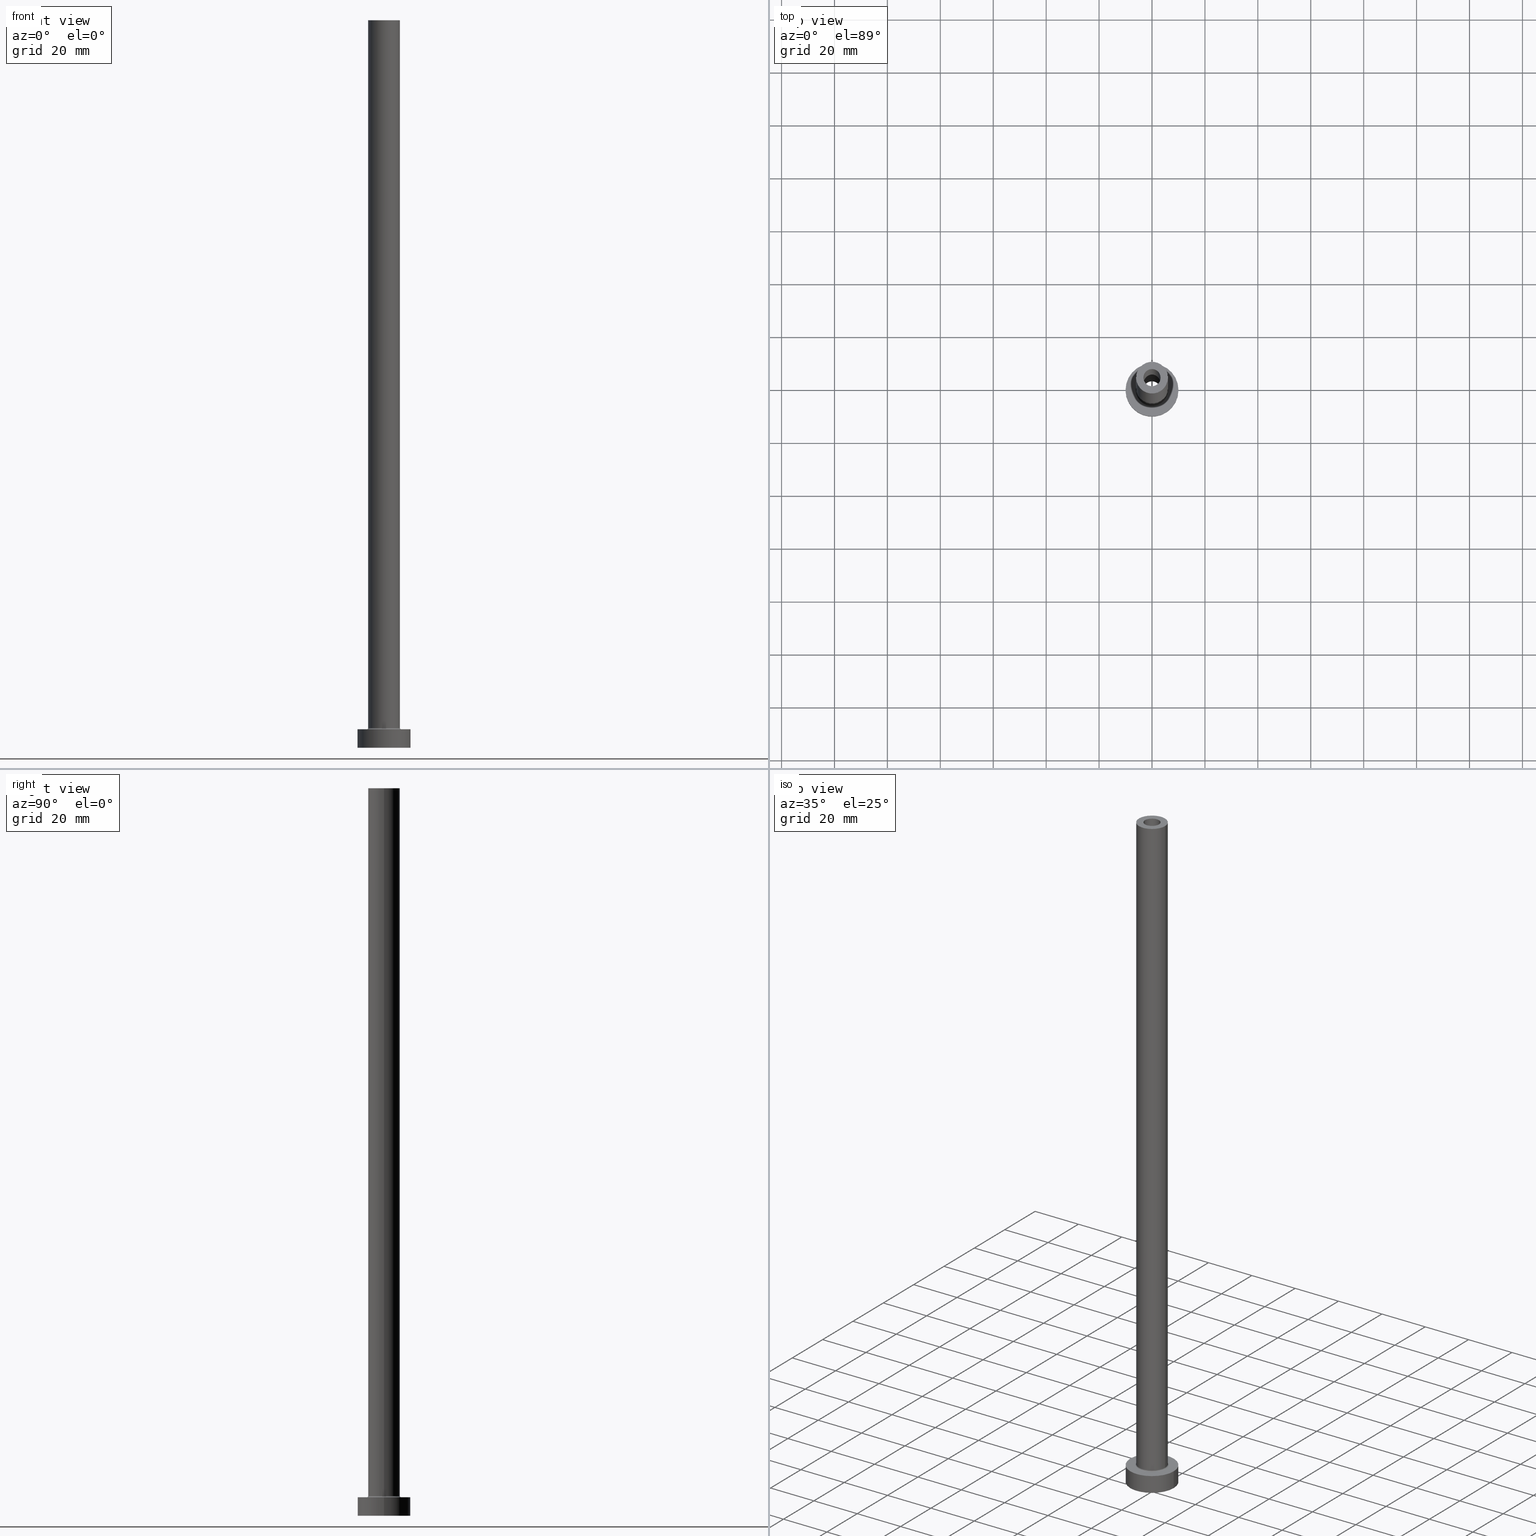
[diagram: canonical four-view strip — front | top / right | iso, engineering-drawing reading convention]
A machine part, canonical four-view strip (front | top / right | iso — engineering-drawing reading convention). The complete STEP part file that produces these views, byte-faithful:
ISO-10303-21;
HEADER;
FILE_DESCRIPTION (( 'STEP AP203' ),
    '1' );
FILE_NAME ('68f6.STEP',
    '2023-02-13T13:31:06',
    ( '' ),
    ( '' ),
    'SwSTEP 2.0',
    'SolidWorks 2019',
    '' );
FILE_SCHEMA (( 'CONFIG_CONTROL_DESIGN' ));
ENDSEC;

DATA;
#1 = CARTESIAN_POINT ( 'NONE',  ( 3.250000000000000444, 3.980102097228897245E-16, 275.0000000000000000 ) ) ;
#2 = CIRCLE ( 'NONE', #248, 6.000000000000000888 ) ;
#3 = SECURITY_CLASSIFICATION ( '', '', #225 ) ;
#4 = EDGE_LOOP ( 'NONE', ( #143, #25, #193, #302 ) ) ;
#5 = DIRECTION ( 'NONE',  ( 0.000000000000000000, 0.000000000000000000, 1.000000000000000000 ) ) ;
#6 = DATE_AND_TIME ( #16, #356 ) ;
#7 = ORIENTED_EDGE ( 'NONE', *, *, #192, .F. ) ;
#8 = FACE_OUTER_BOUND ( 'NONE', #10, .T. ) ;
#9 = AXIS2_PLACEMENT_3D ( 'NONE', #182, #425, #158 ) ;
#10 = EDGE_LOOP ( 'NONE', ( #113, #443, #221, #288 ) ) ;
#11 = DIRECTION ( 'NONE',  ( 1.000000000000000000, 0.000000000000000000, 0.000000000000000000 ) ) ;
#12 = APPROVAL_ROLE ( '' ) ;
#13 = VERTEX_POINT ( 'NONE', #420 ) ;
#14 = FACE_OUTER_BOUND ( 'NONE', #233, .T. ) ;
#15 = EDGE_CURVE ( 'NONE', #336, #272, #213, .T. ) ;
#16 = CALENDAR_DATE ( 2023, 13, 2 ) ;
#17 = ORIENTED_EDGE ( 'NONE', *, *, #31, .T. ) ;
#18 = AXIS2_PLACEMENT_3D ( 'NONE', #52, #208, #346 ) ;
#19 = DIRECTION ( 'NONE',  ( -0.000000000000000000, -0.000000000000000000, -1.000000000000000000 ) ) ;
#20 = DIRECTION ( 'NONE',  ( 0.000000000000000000, 0.000000000000000000, 1.000000000000000000 ) ) ;
#21 = CARTESIAN_POINT ( 'NONE',  ( 0.000000000000000000, 0.000000000000000000, 275.0000000000000000 ) ) ;
#22 = CARTESIAN_POINT ( 'NONE',  ( 0.000000000000000000, 0.000000000000000000, 275.0000000000000000 ) ) ;
#23 = CARTESIAN_POINT ( 'NONE',  ( -10.00000000000000000, 0.000000000000000000, 0.000000000000000000 ) ) ;
#24 = CARTESIAN_POINT ( 'NONE',  ( -3.250000000000000444, 0.000000000000000000, 275.0000000000000000 ) ) ;
#25 = ORIENTED_EDGE ( 'NONE', *, *, #43, .T. ) ;
#26 = EDGE_CURVE ( 'NONE', #77, #336, #103, .T. ) ;
#27 = DIRECTION ( 'NONE',  ( -1.000000000000000000, 0.000000000000000000, 0.000000000000000000 ) ) ;
#28 = CARTESIAN_POINT ( 'NONE',  ( 0.000000000000000000, 0.000000000000000000, 7.500000000000007105 ) ) ;
#29 = CIRCLE ( 'NONE', #284, 3.250000000000000444 ) ;
#30 = MANIFOLD_SOLID_BREP ( 'Odebrat vysunut�m4', #377 ) ;
#31 = EDGE_CURVE ( 'NONE', #96, #13, #455, .T. ) ;
#32 = CC_DESIGN_PERSON_AND_ORGANIZATION_ASSIGNMENT ( #76, #218, ( #3 ) ) ;
#33 = CIRCLE ( 'NONE', #292, 10.00000000000000000 ) ;
#34 = APPLICATION_CONTEXT ( 'configuration controlled 3d designs of mechanical parts and assemblies' ) ;
#35 = DIRECTION ( 'NONE',  ( 1.000000000000000000, 0.000000000000000000, 0.000000000000000000 ) ) ;
#36 = CARTESIAN_POINT ( 'NONE',  ( 0.000000000000000000, 0.000000000000000000, 230.0000000000000284 ) ) ;
#37 = CIRCLE ( 'NONE', #146, 10.00000000000000000 ) ;
#38 = EDGE_LOOP ( 'NONE', ( #432, #223, #344, #254 ) ) ;
#39 = DIRECTION ( 'NONE',  ( 1.000000000000000000, 0.000000000000000000, 0.000000000000000000 ) ) ;
#40 = COORDINATED_UNIVERSAL_TIME_OFFSET ( 1, 0, .AHEAD. ) ;
#41 = ORIENTED_EDGE ( 'NONE', *, *, #104, .T. ) ;
#42 = DIRECTION ( 'NONE',  ( 1.000000000000000000, 0.000000000000000000, 0.000000000000000000 ) ) ;
#43 = EDGE_CURVE ( 'NONE', #169, #398, #270, .T. ) ;
#44 = SHAPE_DEFINITION_REPRESENTATION ( #214, #195 ) ;
#45 = ORIENTED_EDGE ( 'NONE', *, *, #215, .T. ) ;
#46 = CARTESIAN_POINT ( 'NONE',  ( 10.00000000000000000, 1.224646799147353256E-15, 7.000000000000000000 ) ) ;
#47 = CIRCLE ( 'NONE', #129, 3.250000000000000444 ) ;
#48 = CC_DESIGN_APPROVAL ( #359, ( #449 ) ) ;
#49 = PERSON_AND_ORGANIZATION ( #422, #275 ) ;
#50 = EDGE_CURVE ( 'NONE', #160, #264, #47, .T. ) ;
#51 = ORIENTED_EDGE ( 'NONE', *, *, #151, .F. ) ;
#52 = CARTESIAN_POINT ( 'NONE',  ( 0.000000000000000000, 0.000000000000000000, 275.0000000000000000 ) ) ;
#53 = PERSON_AND_ORGANIZATION_ROLE ( 'creator' ) ;
#54 = ORIENTED_EDGE ( 'NONE', *, *, #15, .T. ) ;
#55 = FACE_OUTER_BOUND ( 'NONE', #206, .T. ) ;
#56 = DIRECTION ( 'NONE',  ( 0.000000000000000000, 0.000000000000000000, 1.000000000000000000 ) ) ;
#57 = ORIENTED_EDGE ( 'NONE', *, *, #132, .T. ) ;
#58 = CIRCLE ( 'NONE', #349, 3.399999999999999911 ) ;
#59 = CYLINDRICAL_SURFACE ( 'NONE', #120, 6.000000000000000888 ) ;
#60 = CIRCLE ( 'NONE', #107, 0.5000000000000004441 ) ;
#61 = CARTESIAN_POINT ( 'NONE',  ( 0.000000000000000000, 0.000000000000000000, 275.0000000000000000 ) ) ;
#62 = DIRECTION ( 'NONE',  ( 1.000000000000000000, 0.000000000000000000, -0.000000000000000000 ) ) ;
#63 = ORIENTED_EDGE ( 'NONE', *, *, #116, .T. ) ;
#64 = EDGE_CURVE ( 'NONE', #264, #160, #267, .T. ) ;
#65 = DIRECTION ( 'NONE',  ( 0.000000000000000000, -1.000000000000000000, 0.000000000000000000 ) ) ;
#66 = DIRECTION ( 'NONE',  ( 1.000000000000000000, 0.000000000000000000, -0.000000000000000000 ) ) ;
#67 = ORIENTED_EDGE ( 'NONE', *, *, #64, .F. ) ;
#68 = DIRECTION ( 'NONE',  ( 1.000000000000000000, 0.000000000000000000, 0.000000000000000000 ) ) ;
#69 = TOROIDAL_SURFACE ( 'NONE', #73, 6.500000000000000888, 0.5000000000000000000 ) ;
#70 = ADVANCED_FACE ( 'NONE', ( #139 ), #311, .F. ) ;
#71 = ADVANCED_FACE ( 'NONE', ( #360 ), #255, .T. ) ;
#72 = UNCERTAINTY_MEASURE_WITH_UNIT (LENGTH_MEASURE( 1.000000000000000082E-05 ), #97, 'distance_accuracy_value', 'NONE');
#73 = AXIS2_PLACEMENT_3D ( 'NONE', #190, #5, #352 ) ;
#74 = LINE ( 'NONE', #227, #434 ) ;
#75 = CARTESIAN_POINT ( 'NONE',  ( 0.000000000000000000, 0.000000000000000000, 7.000000000000000000 ) ) ;
#76 = PERSON_AND_ORGANIZATION ( #422, #275 ) ;
#77 = VERTEX_POINT ( 'NONE', #78 ) ;
#78 = CARTESIAN_POINT ( 'NONE',  ( -3.399999999999999911, 0.000000000000000000, 230.0000000000000284 ) ) ;
#79 = CIRCLE ( 'NONE', #386, 10.00000000000000000 ) ;
#80 = APPROVAL_STATUS ( 'not_yet_approved' ) ;
#81 = EDGE_LOOP ( 'NONE', ( #321, #436 ) ) ;
#82 = CC_DESIGN_PERSON_AND_ORGANIZATION_ASSIGNMENT ( #298, #126, ( #449 ) ) ;
#83 = DIRECTION ( 'NONE',  ( 0.000000000000000000, 0.000000000000000000, 1.000000000000000000 ) ) ;
#84 = APPROVAL_DATE_TIME ( #431, #283 ) ;
#85 = ORIENTED_EDGE ( 'NONE', *, *, #236, .T. ) ;
#86 = CYLINDRICAL_SURFACE ( 'NONE', #9, 10.00000000000000000 ) ;
#87 = MECHANICAL_CONTEXT ( 'NONE', #341, 'mechanical' ) ;
#88 = ORIENTED_EDGE ( 'NONE', *, *, #236, .F. ) ;
#89 = DIRECTION ( 'NONE',  ( -1.000000000000000000, 0.000000000000000000, 0.000000000000000000 ) ) ;
#90 = CIRCLE ( 'NONE', #274, 6.000000000000000888 ) ;
#91 = CIRCLE ( 'NONE', #396, 10.00000000000000000 ) ;
#92 = PERSON_AND_ORGANIZATION ( #422, #275 ) ;
#93 = ORIENTED_EDGE ( 'NONE', *, *, #445, .F. ) ;
#94 = CARTESIAN_POINT ( 'NONE',  ( -6.000000000000000888, 0.000000000000000000, 7.500000000000007105 ) ) ;
#95 = DIRECTION ( 'NONE',  ( 1.000000000000000000, 0.000000000000000000, 0.000000000000000000 ) ) ;
#96 = VERTEX_POINT ( 'NONE', #399 ) ;
#97 =( LENGTH_UNIT ( ) NAMED_UNIT ( * ) SI_UNIT ( .MILLI., .METRE. ) );
#98 = CARTESIAN_POINT ( 'NONE',  ( -3.399999999999999911, 0.000000000000000000, 239.6166522241370842 ) ) ;
#99 = DIRECTION ( 'NONE',  ( -1.000000000000000000, 0.000000000000000000, 0.000000000000000000 ) ) ;
#100 = EDGE_LOOP ( 'NONE', ( #163, #154, #347, #368 ) ) ;
#101 = DIRECTION ( 'NONE',  ( 0.000000000000000000, 0.000000000000000000, 1.000000000000000000 ) ) ;
#102 = CARTESIAN_POINT ( 'NONE',  ( 6.000000000000000888, 7.347880794884120722E-16, 275.0000000000000000 ) ) ;
#103 = LINE ( 'NONE', #98, #240 ) ;
#104 = EDGE_CURVE ( 'NONE', #169, #340, #79, .T. ) ;
#105 = CYLINDRICAL_SURFACE ( 'NONE', #229, 3.399999999999999911 ) ;
#106 = AXIS2_PLACEMENT_3D ( 'NONE', #444, #312, #142 ) ;
#107 = AXIS2_PLACEMENT_3D ( 'NONE', #381, #65, #335 ) ;
#108 = AXIS2_PLACEMENT_3D ( 'NONE', #437, #316, #429 ) ;
#109 = AXIS2_PLACEMENT_3D ( 'NONE', #373, #168, #238 ) ;
#110 = DIRECTION ( 'NONE',  ( 0.000000000000000000, 0.000000000000000000, -1.000000000000000000 ) ) ;
#111 = FACE_BOUND ( 'NONE', #411, .T. ) ;
#112 = EDGE_CURVE ( 'NONE', #400, #398, #33, .T. ) ;
#113 = ORIENTED_EDGE ( 'NONE', *, *, #43, .F. ) ;
#114 = CARTESIAN_POINT ( 'NONE',  ( 0.000000000000000000, 0.000000000000000000, 275.0000000000000000 ) ) ;
#115 = DATE_TIME_ROLE ( 'classification_date' ) ;
#116 = EDGE_CURVE ( 'NONE', #77, #374, #58, .T. ) ;
#117 = ORIENTED_EDGE ( 'NONE', *, *, #151, .T. ) ;
#118 = DIRECTION ( 'NONE',  ( -1.000000000000000000, 0.000000000000000000, 0.000000000000000000 ) ) ;
#119 = VECTOR ( 'NONE', #123, 1000.000000000000000 ) ;
#120 = AXIS2_PLACEMENT_3D ( 'NONE', #21, #19, #99 ) ;
#121 = DATE_AND_TIME ( #435, #191 ) ;
#122 = ORIENTED_EDGE ( 'NONE', *, *, #26, .T. ) ;
#123 = DIRECTION ( 'NONE',  ( -0.000000000000000000, -0.000000000000000000, -1.000000000000000000 ) ) ;
#124 = ORIENTED_EDGE ( 'NONE', *, *, #192, .T. ) ;
#125 = CYLINDRICAL_SURFACE ( 'NONE', #459, 10.00000000000000000 ) ;
#126 = PERSON_AND_ORGANIZATION_ROLE ( 'creator' ) ;
#127 = VERTEX_POINT ( 'NONE', #179 ) ;
#128 = DIRECTION ( 'NONE',  ( -0.000000000000000000, -0.000000000000000000, -1.000000000000000000 ) ) ;
#129 = AXIS2_PLACEMENT_3D ( 'NONE', #22, #448, #239 ) ;
#130 = APPROVAL_PERSON_ORGANIZATION ( #260, #283, #183 ) ;
#131 =( NAMED_UNIT ( * ) SI_UNIT ( $, .STERADIAN. ) SOLID_ANGLE_UNIT ( ) );
#132 = EDGE_CURVE ( 'NONE', #340, #169, #37, .T. ) ;
#133 = ORIENTED_EDGE ( 'NONE', *, *, #354, .T. ) ;
#134 = PLANE ( 'NONE',  #147 ) ;
#135 = CARTESIAN_POINT ( 'NONE',  ( 0.000000000000000000, 0.000000000000000000, 0.000000000000000000 ) ) ;
#136 = EDGE_CURVE ( 'NONE', #160, #96, #433, .T. ) ;
#137 = FACE_OUTER_BOUND ( 'NONE', #81, .T. ) ;
#138 = CC_DESIGN_DATE_AND_TIME_ASSIGNMENT ( #295, #115, ( #3 ) ) ;
#139 = FACE_OUTER_BOUND ( 'NONE', #324, .T. ) ;
#140 = AXIS2_PLACEMENT_3D ( 'NONE', #319, #83, #286 ) ;
#141 = FACE_OUTER_BOUND ( 'NONE', #331, .T. ) ;
#142 = DIRECTION ( 'NONE',  ( -1.000000000000000000, 0.000000000000000000, 0.000000000000000000 ) ) ;
#143 = ORIENTED_EDGE ( 'NONE', *, *, #104, .F. ) ;
#144 = EDGE_CURVE ( 'NONE', #393, #333, #2, .T. ) ;
#145 = CARTESIAN_POINT ( 'NONE',  ( -3.250000000000000444, 0.000000000000000000, 275.0000000000000000 ) ) ;
#146 = AXIS2_PLACEMENT_3D ( 'NONE', #75, #389, #11 ) ;
#147 = AXIS2_PLACEMENT_3D ( 'NONE', #412, #56, #451 ) ;
#148 = EDGE_CURVE ( 'NONE', #266, #333, #262, .T. ) ;
#149 = VECTOR ( 'NONE', #164, 1000.000000000000000 ) ;
#150 = DIRECTION ( 'NONE',  ( 0.000000000000000000, 0.000000000000000000, 1.000000000000000000 ) ) ;
#151 = EDGE_CURVE ( 'NONE', #127, #408, #159, .T. ) ;
#152 = FACE_OUTER_BOUND ( 'NONE', #189, .T. ) ;
#153 = EDGE_CURVE ( 'NONE', #374, #77, #387, .T. ) ;
#154 = ORIENTED_EDGE ( 'NONE', *, *, #50, .T. ) ;
#155 = CARTESIAN_POINT ( 'NONE',  ( 0.000000000000000000, 0.000000000000000000, 7.000000000000000000 ) ) ;
#156 = PERSON_AND_ORGANIZATION_ROLE ( 'design_supplier' ) ;
#157 = ORIENTED_EDGE ( 'NONE', *, *, #116, .F. ) ;
#158 = DIRECTION ( 'NONE',  ( -1.000000000000000000, 0.000000000000000000, 0.000000000000000000 ) ) ;
#159 = CIRCLE ( 'NONE', #219, 6.500000000000000888 ) ;
#160 = VERTEX_POINT ( 'NONE', #251 ) ;
#161 = DIRECTION ( 'NONE',  ( 1.000000000000000000, 0.000000000000000000, 0.000000000000000000 ) ) ;
#162 = DIRECTION ( 'NONE',  ( 1.000000000000000000, 0.000000000000000000, 0.000000000000000000 ) ) ;
#163 = ORIENTED_EDGE ( 'NONE', *, *, #136, .F. ) ;
#164 = DIRECTION ( 'NONE',  ( 0.000000000000000000, 0.000000000000000000, -1.000000000000000000 ) ) ;
#165 = EDGE_LOOP ( 'NONE', ( #67, #209 ) ) ;
#166 = AXIS2_PLACEMENT_3D ( 'NONE', #155, #334, #66 ) ;
#167 = CC_DESIGN_APPROVAL ( #378, ( #3 ) ) ;
#168 = DIRECTION ( 'NONE',  ( 1.224646799147353207E-16, 1.000000000000000000, -0.000000000000000000 ) ) ;
#169 = VERTEX_POINT ( 'NONE', #46 ) ;
#170 = ADVANCED_FACE ( 'NONE', ( #8 ), #86, .T. ) ;
#171 = DIRECTION ( 'NONE',  ( 0.000000000000000000, 0.000000000000000000, 1.000000000000000000 ) ) ;
#172 = ORIENTED_EDGE ( 'NONE', *, *, #438, .F. ) ;
#173 = CARTESIAN_POINT ( 'NONE',  ( 0.000000000000000000, 0.000000000000000000, 0.000000000000000000 ) ) ;
#174 = CARTESIAN_POINT ( 'NONE',  ( 3.399999999999999911, 4.163799117101000559E-16, 0.000000000000000000 ) ) ;
#175 = EDGE_LOOP ( 'NONE', ( #380, #88 ) ) ;
#176 = FACE_BOUND ( 'NONE', #175, .T. ) ;
#177 = FACE_OUTER_BOUND ( 'NONE', #200, .T. ) ;
#178 = AXIS2_PLACEMENT_3D ( 'NONE', #36, #185, #161 ) ;
#179 = CARTESIAN_POINT ( 'NONE',  ( 6.500000000000000888, 0.000000000000000000, 7.000000000000002665 ) ) ;
#180 = EDGE_CURVE ( 'NONE', #374, #272, #74, .T. ) ;
#181 = CIRCLE ( 'NONE', #326, 3.399999999999999911 ) ;
#182 = CARTESIAN_POINT ( 'NONE',  ( 0.000000000000000000, 0.000000000000000000, 7.000000000000000000 ) ) ;
#183 = APPROVAL_ROLE ( '' ) ;
#184 = ORIENTED_EDGE ( 'NONE', *, *, #64, .T. ) ;
#185 = DIRECTION ( 'NONE',  ( 0.000000000000000000, 0.000000000000000000, 1.000000000000000000 ) ) ;
#186 = DIRECTION ( 'NONE',  ( 0.000000000000000000, 0.000000000000000000, 1.000000000000000000 ) ) ;
#187 = CARTESIAN_POINT ( 'NONE',  ( 0.000000000000000000, 0.000000000000000000, 275.0000000000000000 ) ) ;
#188 = COORDINATED_UNIVERSAL_TIME_OFFSET ( 1, 0, .AHEAD. ) ;
#189 = EDGE_LOOP ( 'NONE', ( #57, #41 ) ) ;
#190 = CARTESIAN_POINT ( 'NONE',  ( 0.000000000000000000, 0.000000000000000000, 7.500000000000007105 ) ) ;
#191 = LOCAL_TIME ( 14, 31, 6.000000000000000000, #40 ) ;
#192 = EDGE_CURVE ( 'NONE', #266, #278, #90, .T. ) ;
#193 = ORIENTED_EDGE ( 'NONE', *, *, #428, .T. ) ;
#194 = CARTESIAN_POINT ( 'NONE',  ( 0.000000000000000000, 0.000000000000000000, 7.000000000000000000 ) ) ;
#195 = ADVANCED_BREP_SHAPE_REPRESENTATION ( '68f6', ( #30, #318 ), #460 ) ;
#196 = ORIENTED_EDGE ( 'NONE', *, *, #26, .F. ) ;
#197 = FACE_BOUND ( 'NONE', #165, .T. ) ;
#198 = ADVANCED_FACE ( 'NONE', ( #365 ), #69, .F. ) ;
#199 = CARTESIAN_POINT ( 'NONE',  ( 0.000000000000000000, 0.000000000000000000, 275.0000000000000000 ) ) ;
#200 = EDGE_LOOP ( 'NONE', ( #371, #242, #122, #54 ) ) ;
#201 = CC_DESIGN_PERSON_AND_ORGANIZATION_ASSIGNMENT ( #447, #53, ( #423 ) ) ;
#202 = AXIS2_PLACEMENT_3D ( 'NONE', #277, #419, #205 ) ;
#203 = CIRCLE ( 'NONE', #109, 0.5000000000000004441 ) ;
#204 = DIRECTION ( 'NONE',  ( 0.000000000000000000, 0.000000000000000000, 1.000000000000000000 ) ) ;
#205 = DIRECTION ( 'NONE',  ( 1.000000000000000000, 0.000000000000000000, -0.000000000000000000 ) ) ;
#206 = EDGE_LOOP ( 'NONE', ( #184, #237, #306, #404 ) ) ;
#207 = CARTESIAN_POINT ( 'NONE',  ( 10.00000000000000000, 1.224646799147353256E-15, 0.000000000000000000 ) ) ;
#208 = DIRECTION ( 'NONE',  ( 0.000000000000000000, 0.000000000000000000, -1.000000000000000000 ) ) ;
#209 = ORIENTED_EDGE ( 'NONE', *, *, #50, .F. ) ;
#210 = AXIS2_PLACEMENT_3D ( 'NONE', #61, #204, #452 ) ;
#211 = CYLINDRICAL_SURFACE ( 'NONE', #106, 3.399999999999999911 ) ;
#212 = CC_DESIGN_DATE_AND_TIME_ASSIGNMENT ( #407, #231, ( #449 ) ) ;
#213 = CIRCLE ( 'NONE', #303, 3.399999999999999911 ) ;
#214 = PRODUCT_DEFINITION_SHAPE ( 'NONE', 'NONE',  #449 ) ;
#215 = EDGE_CURVE ( 'NONE', #278, #266, #337, .T. ) ;
#216 = DIRECTION ( 'NONE',  ( 0.000000000000000000, 0.000000000000000000, 1.000000000000000000 ) ) ;
#217 = DIRECTION ( 'NONE',  ( 0.000000000000000000, 0.000000000000000000, 1.000000000000000000 ) ) ;
#218 = PERSON_AND_ORGANIZATION_ROLE ( 'classification_officer' ) ;
#219 = AXIS2_PLACEMENT_3D ( 'NONE', #353, #285, #42 ) ;
#220 = CC_DESIGN_SECURITY_CLASSIFICATION ( #3, ( #423 ) ) ;
#221 = ORIENTED_EDGE ( 'NONE', *, *, #313, .T. ) ;
#222 = APPROVAL_ROLE ( '' ) ;
#223 = ORIENTED_EDGE ( 'NONE', *, *, #390, .T. ) ;
#224 = DIRECTION ( 'NONE',  ( 0.000000000000000000, 0.000000000000000000, -1.000000000000000000 ) ) ;
#225 = SECURITY_CLASSIFICATION_LEVEL ( 'unclassified' ) ;
#226 = EDGE_LOOP ( 'NONE', ( #133, #17 ) ) ;
#227 = CARTESIAN_POINT ( 'NONE',  ( 3.399999999999999911, 4.163799117101000559E-16, 239.6166522241370842 ) ) ;
#228 = ORIENTED_EDGE ( 'NONE', *, *, #153, .F. ) ;
#229 = AXIS2_PLACEMENT_3D ( 'NONE', #385, #230, #300 ) ;
#230 = DIRECTION ( 'NONE',  ( 0.000000000000000000, 0.000000000000000000, -1.000000000000000000 ) ) ;
#231 = DATE_TIME_ROLE ( 'creation_date' ) ;
#232 = ADVANCED_FACE ( 'NONE', ( #111, #152 ), #394, .T. ) ;
#233 = EDGE_LOOP ( 'NONE', ( #63, #358, #85, #196 ) ) ;
#234 = CARTESIAN_POINT ( 'NONE',  ( -3.399999999999999911, 0.000000000000000000, 0.000000000000000000 ) ) ;
#235 = CARTESIAN_POINT ( 'NONE',  ( 0.000000000000000000, 0.000000000000000000, 230.0000000000000284 ) ) ;
#236 = EDGE_CURVE ( 'NONE', #272, #336, #181, .T. ) ;
#237 = ORIENTED_EDGE ( 'NONE', *, *, #136, .T. ) ;
#238 = DIRECTION ( 'NONE',  ( -1.000000000000000000, 1.224646799147351482E-16, 0.000000000000000000 ) ) ;
#239 = DIRECTION ( 'NONE',  ( 1.000000000000000000, 0.000000000000000000, 0.000000000000000000 ) ) ;
#240 = VECTOR ( 'NONE', #245, 1000.000000000000000 ) ;
#241 = PLANE ( 'NONE',  #426 ) ;
#242 = ORIENTED_EDGE ( 'NONE', *, *, #153, .T. ) ;
#243 = FACE_OUTER_BOUND ( 'NONE', #100, .T. ) ;
#244 = DIRECTION ( 'NONE',  ( 1.000000000000000000, 0.000000000000000000, 0.000000000000000000 ) ) ;
#245 = DIRECTION ( 'NONE',  ( 0.000000000000000000, 0.000000000000000000, -1.000000000000000000 ) ) ;
#246 = ADVANCED_FACE ( 'NONE', ( #55 ), #405, .F. ) ;
#247 = DIRECTION ( 'NONE',  ( -0.000000000000000000, -0.000000000000000000, -1.000000000000000000 ) ) ;
#248 = AXIS2_PLACEMENT_3D ( 'NONE', #322, #217, #430 ) ;
#249 = EDGE_CURVE ( 'NONE', #333, #393, #446, .T. ) ;
#250 = AXIS2_PLACEMENT_3D ( 'NONE', #416, #20, #304 ) ;
#251 = CARTESIAN_POINT ( 'NONE',  ( 3.250000000000000444, 3.980102097228897245E-16, 275.0000000000000000 ) ) ;
#252 = CARTESIAN_POINT ( 'NONE',  ( 0.000000000000000000, 0.000000000000000000, 230.0000000000000284 ) ) ;
#253 = EDGE_CURVE ( 'NONE', #264, #13, #309, .T. ) ;
#254 = ORIENTED_EDGE ( 'NONE', *, *, #148, .F. ) ;
#255 = CYLINDRICAL_SURFACE ( 'NONE', #417, 6.000000000000000888 ) ;
#256 = CALENDAR_DATE ( 2023, 13, 2 ) ;
#257 = ORIENTED_EDGE ( 'NONE', *, *, #144, .F. ) ;
#258 = CARTESIAN_POINT ( 'NONE',  ( 0.000000000000000000, 0.000000000000000000, 7.000000000000000000 ) ) ;
#259 = ADVANCED_FACE ( 'NONE', ( #177 ), #211, .F. ) ;
#260 = PERSON_AND_ORGANIZATION ( #422, #275 ) ;
#261 = ORIENTED_EDGE ( 'NONE', *, *, #390, .F. ) ;
#262 = LINE ( 'NONE', #362, #119 ) ;
#263 = APPLICATION_PROTOCOL_DEFINITION ( 'international standard', 'config_control_design', 1994, #34 ) ;
#264 = VERTEX_POINT ( 'NONE', #24 ) ;
#265 = DIRECTION ( 'NONE',  ( 0.000000000000000000, 0.000000000000000000, 1.000000000000000000 ) ) ;
#266 = VERTEX_POINT ( 'NONE', #280 ) ;
#267 = CIRCLE ( 'NONE', #210, 3.250000000000000444 ) ;
#268 = CARTESIAN_POINT ( 'NONE',  ( -10.00000000000000000, 0.000000000000000000, 7.000000000000000000 ) ) ;
#269 = DIRECTION ( 'NONE',  ( 0.000000000000000000, 0.000000000000000000, -1.000000000000000000 ) ) ;
#270 = LINE ( 'NONE', #384, #314 ) ;
#271 = LINE ( 'NONE', #379, #338 ) ;
#272 = VERTEX_POINT ( 'NONE', #174 ) ;
#273 = DIRECTION ( 'NONE',  ( 1.000000000000000000, 0.000000000000000000, 0.000000000000000000 ) ) ;
#274 = AXIS2_PLACEMENT_3D ( 'NONE', #114, #216, #294 ) ;
#275 = ORGANIZATION ( 'NEUR�EN�', 'NEUR�EN�', '' ) ;
#276 = CARTESIAN_POINT ( 'NONE',  ( -6.500000000000000888, 7.960204194457796463E-16, 7.000000000000002665 ) ) ;
#277 = CARTESIAN_POINT ( 'NONE',  ( 0.000000000000000000, 0.000000000000000000, 275.0000000000000000 ) ) ;
#278 = VERTEX_POINT ( 'NONE', #102 ) ;
#279 = DESIGN_CONTEXT ( 'detailed design', #34, 'design' ) ;
#280 = CARTESIAN_POINT ( 'NONE',  ( -6.000000000000000888, 0.000000000000000000, 275.0000000000000000 ) ) ;
#281 = EDGE_CURVE ( 'NONE', #408, #127, #317, .T. ) ;
#282 = APPROVAL_PERSON_ORGANIZATION ( #397, #378, #222 ) ;
#283 = APPROVAL ( #290, 'NEUR�EN�' ) ;
#284 = AXIS2_PLACEMENT_3D ( 'NONE', #235, #171, #308 ) ;
#285 = DIRECTION ( 'NONE',  ( -0.000000000000000000, -0.000000000000000000, -1.000000000000000000 ) ) ;
#286 = DIRECTION ( 'NONE',  ( 1.000000000000000000, 0.000000000000000000, 0.000000000000000000 ) ) ;
#287 = CALENDAR_DATE ( 2023, 13, 2 ) ;
#288 = ORIENTED_EDGE ( 'NONE', *, *, #112, .T. ) ;
#289 = DIRECTION ( 'NONE',  ( -0.000000000000000000, -0.000000000000000000, -1.000000000000000000 ) ) ;
#290 = APPROVAL_STATUS ( 'not_yet_approved' ) ;
#291 = ADVANCED_FACE ( 'NONE', ( #14 ), #105, .F. ) ;
#292 = AXIS2_PLACEMENT_3D ( 'NONE', #325, #150, #329 ) ;
#293 = ORIENTED_EDGE ( 'NONE', *, *, #249, .T. ) ;
#294 = DIRECTION ( 'NONE',  ( 1.000000000000000000, 0.000000000000000000, 0.000000000000000000 ) ) ;
#295 = DATE_AND_TIME ( #287, #367 ) ;
#296 = ORIENTED_EDGE ( 'NONE', *, *, #281, .T. ) ;
#297 = FACE_OUTER_BOUND ( 'NONE', #4, .T. ) ;
#298 = PERSON_AND_ORGANIZATION ( #422, #275 ) ;
#299 = ORIENTED_EDGE ( 'NONE', *, *, #438, .T. ) ;
#300 = DIRECTION ( 'NONE',  ( -1.000000000000000000, 0.000000000000000000, 0.000000000000000000 ) ) ;
#301 = CARTESIAN_POINT ( 'NONE',  ( 0.000000000000000000, 0.000000000000000000, 0.000000000000000000 ) ) ;
#302 = ORIENTED_EDGE ( 'NONE', *, *, #313, .F. ) ;
#303 = AXIS2_PLACEMENT_3D ( 'NONE', #135, #310, #273 ) ;
#304 = DIRECTION ( 'NONE',  ( 1.000000000000000000, 0.000000000000000000, 0.000000000000000000 ) ) ;
#305 = DIRECTION ( 'NONE',  ( -0.000000000000000000, -0.000000000000000000, -1.000000000000000000 ) ) ;
#306 = ORIENTED_EDGE ( 'NONE', *, *, #354, .F. ) ;
#307 = ADVANCED_FACE ( 'NONE', ( #297 ), #125, .T. ) ;
#308 = DIRECTION ( 'NONE',  ( 1.000000000000000000, 0.000000000000000000, 0.000000000000000000 ) ) ;
#309 = LINE ( 'NONE', #145, #149 ) ;
#310 = DIRECTION ( 'NONE',  ( -0.000000000000000000, -0.000000000000000000, -1.000000000000000000 ) ) ;
#311 = TOROIDAL_SURFACE ( 'NONE', #140, 6.500000000000000888, 0.5000000000000000000 ) ;
#312 = DIRECTION ( 'NONE',  ( 0.000000000000000000, 0.000000000000000000, -1.000000000000000000 ) ) ;
#313 = EDGE_CURVE ( 'NONE', #340, #400, #332, .T. ) ;
#314 = VECTOR ( 'NONE', #450, 1000.000000000000000 ) ;
#315 = APPROVAL_PERSON_ORGANIZATION ( #92, #359, #12 ) ;
#316 = DIRECTION ( 'NONE',  ( 0.000000000000000000, 0.000000000000000000, 1.000000000000000000 ) ) ;
#317 = CIRCLE ( 'NONE', #366, 6.500000000000000888 ) ;
#318 = AXIS2_PLACEMENT_3D ( 'NONE', #301, #186, #162 ) ;
#319 = CARTESIAN_POINT ( 'NONE',  ( 0.000000000000000000, 0.000000000000000000, 7.500000000000007105 ) ) ;
#320 = APPROVAL_DATE_TIME ( #6, #359 ) ;
#321 = ORIENTED_EDGE ( 'NONE', *, *, #112, .F. ) ;
#322 = CARTESIAN_POINT ( 'NONE',  ( 0.000000000000000000, 0.000000000000000000, 7.500000000000007105 ) ) ;
#323 = PERSON_AND_ORGANIZATION_ROLE ( 'design_owner' ) ;
#324 = EDGE_LOOP ( 'NONE', ( #93, #257, #299, #440 ) ) ;
#325 = CARTESIAN_POINT ( 'NONE',  ( 0.000000000000000000, 0.000000000000000000, 0.000000000000000000 ) ) ;
#326 = AXIS2_PLACEMENT_3D ( 'NONE', #458, #128, #68 ) ;
#327 = LOCAL_TIME ( 14, 31, 6.000000000000000000, #188 ) ;
#328 = ORIENTED_EDGE ( 'NONE', *, *, #445, .T. ) ;
#329 = DIRECTION ( 'NONE',  ( 1.000000000000000000, 0.000000000000000000, 0.000000000000000000 ) ) ;
#330 = APPROVAL_STATUS ( 'not_yet_approved' ) ;
#331 = EDGE_LOOP ( 'NONE', ( #157, #228 ) ) ;
#332 = LINE ( 'NONE', #268, #406 ) ;
#333 = VERTEX_POINT ( 'NONE', #94 ) ;
#334 = DIRECTION ( 'NONE',  ( 0.000000000000000000, 0.000000000000000000, 1.000000000000000000 ) ) ;
#335 = DIRECTION ( 'NONE',  ( 0.000000000000000000, 0.000000000000000000, -1.000000000000000000 ) ) ;
#336 = VERTEX_POINT ( 'NONE', #234 ) ;
#337 = CIRCLE ( 'NONE', #108, 6.000000000000000888 ) ;
#338 = VECTOR ( 'NONE', #305, 1000.000000000000000 ) ;
#339 =( NAMED_UNIT ( * ) PLANE_ANGLE_UNIT ( ) SI_UNIT ( $, .RADIAN. ) );
#340 = VERTEX_POINT ( 'NONE', #372 ) ;
#341 = APPLICATION_CONTEXT ( 'configuration controlled 3d designs of mechanical parts and assemblies' ) ;
#342 = CC_DESIGN_PERSON_AND_ORGANIZATION_ASSIGNMENT ( #49, #323, ( #351 ) ) ;
#343 = DIRECTION ( 'NONE',  ( 0.000000000000000000, 0.000000000000000000, 1.000000000000000000 ) ) ;
#344 = ORIENTED_EDGE ( 'NONE', *, *, #144, .T. ) ;
#345 = CARTESIAN_POINT ( 'NONE',  ( 6.000000000000000888, 7.347880794884120722E-16, 7.500000000000007105 ) ) ;
#346 = DIRECTION ( 'NONE',  ( -1.000000000000000000, 0.000000000000000000, 0.000000000000000000 ) ) ;
#347 = ORIENTED_EDGE ( 'NONE', *, *, #253, .T. ) ;
#348 = ADVANCED_FACE ( 'NONE', ( #197, #383 ), #454, .T. ) ;
#349 = AXIS2_PLACEMENT_3D ( 'NONE', #252, #391, #39 ) ;
#350 = ADVANCED_FACE ( 'NONE', ( #176, #137 ), #241, .F. ) ;
#351 = PRODUCT ( '68f6', '68f6', '', ( #87 ) ) ;
#352 = DIRECTION ( 'NONE',  ( 1.000000000000000000, 0.000000000000000000, 0.000000000000000000 ) ) ;
#353 = CARTESIAN_POINT ( 'NONE',  ( 0.000000000000000000, 0.000000000000000000, 7.000000000000000000 ) ) ;
#354 = EDGE_CURVE ( 'NONE', #13, #96, #29, .T. ) ;
#355 = VECTOR ( 'NONE', #224, 1000.000000000000000 ) ;
#356 = LOCAL_TIME ( 14, 31, 6.000000000000000000, #402 ) ;
#357 = COORDINATED_UNIVERSAL_TIME_OFFSET ( 1, 0, .AHEAD. ) ;
#358 = ORIENTED_EDGE ( 'NONE', *, *, #180, .T. ) ;
#359 = APPROVAL ( #330, 'NEUR�EN�' ) ;
#360 = FACE_OUTER_BOUND ( 'NONE', #38, .T. ) ;
#361 = EDGE_LOOP ( 'NONE', ( #414, #328, #51, #172 ) ) ;
#362 = CARTESIAN_POINT ( 'NONE',  ( -6.000000000000000888, 0.000000000000000000, 275.0000000000000000 ) ) ;
#363 = APPROVAL_DATE_TIME ( #121, #378 ) ;
#364 = EDGE_LOOP ( 'NONE', ( #124, #45 ) ) ;
#365 = FACE_OUTER_BOUND ( 'NONE', #361, .T. ) ;
#366 = AXIS2_PLACEMENT_3D ( 'NONE', #421, #247, #244 ) ;
#367 = LOCAL_TIME ( 14, 31, 6.000000000000000000, #357 ) ;
#368 = ORIENTED_EDGE ( 'NONE', *, *, #31, .F. ) ;
#369 = DIRECTION ( 'NONE',  ( -0.000000000000000000, -0.000000000000000000, -1.000000000000000000 ) ) ;
#370 = COORDINATED_UNIVERSAL_TIME_OFFSET ( 1, 0, .AHEAD. ) ;
#371 = ORIENTED_EDGE ( 'NONE', *, *, #180, .F. ) ;
#372 = CARTESIAN_POINT ( 'NONE',  ( -10.00000000000000000, 0.000000000000000000, 7.000000000000000000 ) ) ;
#373 = CARTESIAN_POINT ( 'NONE',  ( -6.500000000000000888, 7.960204194457796463E-16, 7.500000000000007105 ) ) ;
#374 = VERTEX_POINT ( 'NONE', #375 ) ;
#375 = CARTESIAN_POINT ( 'NONE',  ( 3.399999999999999911, 4.163799117101000559E-16, 230.0000000000000284 ) ) ;
#376 = ORIENTED_EDGE ( 'NONE', *, *, #148, .T. ) ;
#377 = CLOSED_SHELL ( 'NONE', ( #246, #291, #198, #71, #307, #170, #232, #350, #382, #348, #70, #259, #403, #424 ) ) ;
#378 = APPROVAL ( #80, 'NEUR�EN�' ) ;
#379 = CARTESIAN_POINT ( 'NONE',  ( 6.000000000000000888, 7.347880794884120722E-16, 275.0000000000000000 ) ) ;
#380 = ORIENTED_EDGE ( 'NONE', *, *, #15, .F. ) ;
#381 = CARTESIAN_POINT ( 'NONE',  ( 6.500000000000000888, 0.000000000000000000, 7.500000000000007105 ) ) ;
#382 = ADVANCED_FACE ( 'NONE', ( #415 ), #59, .T. ) ;
#383 = FACE_OUTER_BOUND ( 'NONE', #364, .T. ) ;
#384 = CARTESIAN_POINT ( 'NONE',  ( 10.00000000000000000, 1.224646799147353256E-15, 7.000000000000000000 ) ) ;
#385 = CARTESIAN_POINT ( 'NONE',  ( 0.000000000000000000, 0.000000000000000000, 239.6166522241370842 ) ) ;
#386 = AXIS2_PLACEMENT_3D ( 'NONE', #258, #401, #35 ) ;
#387 = CIRCLE ( 'NONE', #178, 3.399999999999999911 ) ;
#388 = CC_DESIGN_APPROVAL ( #283, ( #423 ) ) ;
#389 = DIRECTION ( 'NONE',  ( 0.000000000000000000, 0.000000000000000000, 1.000000000000000000 ) ) ;
#390 = EDGE_CURVE ( 'NONE', #278, #393, #271, .T. ) ;
#391 = DIRECTION ( 'NONE',  ( 0.000000000000000000, 0.000000000000000000, 1.000000000000000000 ) ) ;
#392 = PERSON_AND_ORGANIZATION ( #422, #275 ) ;
#393 = VERTEX_POINT ( 'NONE', #345 ) ;
#394 = PLANE ( 'NONE',  #166 ) ;
#395 = AXIS2_PLACEMENT_3D ( 'NONE', #28, #265, #441 ) ;
#396 = AXIS2_PLACEMENT_3D ( 'NONE', #410, #101, #95 ) ;
#397 = PERSON_AND_ORGANIZATION ( #422, #275 ) ;
#398 = VERTEX_POINT ( 'NONE', #207 ) ;
#399 = CARTESIAN_POINT ( 'NONE',  ( 3.250000000000000444, 3.980102097228897245E-16, 230.0000000000000284 ) ) ;
#400 = VERTEX_POINT ( 'NONE', #23 ) ;
#401 = DIRECTION ( 'NONE',  ( 0.000000000000000000, 0.000000000000000000, 1.000000000000000000 ) ) ;
#402 = COORDINATED_UNIVERSAL_TIME_OFFSET ( 1, 0, .AHEAD. ) ;
#403 = ADVANCED_FACE ( 'NONE', ( #453, #141 ), #134, .F. ) ;
#404 = ORIENTED_EDGE ( 'NONE', *, *, #253, .F. ) ;
#405 = CYLINDRICAL_SURFACE ( 'NONE', #18, 3.250000000000000444 ) ;
#406 = VECTOR ( 'NONE', #409, 1000.000000000000000 ) ;
#407 = DATE_AND_TIME ( #442, #327 ) ;
#408 = VERTEX_POINT ( 'NONE', #276 ) ;
#409 = DIRECTION ( 'NONE',  ( -0.000000000000000000, -0.000000000000000000, -1.000000000000000000 ) ) ;
#410 = CARTESIAN_POINT ( 'NONE',  ( 0.000000000000000000, 0.000000000000000000, 0.000000000000000000 ) ) ;
#411 = EDGE_LOOP ( 'NONE', ( #117, #296 ) ) ;
#412 = CARTESIAN_POINT ( 'NONE',  ( 0.000000000000000000, 0.000000000000000000, 230.0000000000000284 ) ) ;
#413 = PRODUCT_RELATED_PRODUCT_CATEGORY ( 'detail', '', ( #351 ) ) ;
#414 = ORIENTED_EDGE ( 'NONE', *, *, #249, .F. ) ;
#415 = FACE_OUTER_BOUND ( 'NONE', #456, .T. ) ;
#416 = CARTESIAN_POINT ( 'NONE',  ( 0.000000000000000000, 0.000000000000000000, 230.0000000000000284 ) ) ;
#417 = AXIS2_PLACEMENT_3D ( 'NONE', #187, #289, #118 ) ;
#418 = CYLINDRICAL_SURFACE ( 'NONE', #457, 3.250000000000000444 ) ;
#419 = DIRECTION ( 'NONE',  ( 0.000000000000000000, 0.000000000000000000, 1.000000000000000000 ) ) ;
#420 = CARTESIAN_POINT ( 'NONE',  ( -3.250000000000000444, 0.000000000000000000, 230.0000000000000284 ) ) ;
#421 = CARTESIAN_POINT ( 'NONE',  ( 0.000000000000000000, 0.000000000000000000, 7.000000000000000000 ) ) ;
#422 = PERSON ( 'NEUR�EN�', 'NEUR�EN�', 'NEUR�EN�', ('NEUR�EN�'), ('NEUR�EN�'), ('NEUR�EN�') ) ;
#423 = PRODUCT_DEFINITION_FORMATION_WITH_SPECIFIED_SOURCE ( 'LIBOVOLN�', '', #351, .NOT_KNOWN. ) ;
#424 = ADVANCED_FACE ( 'NONE', ( #243 ), #418, .F. ) ;
#425 = DIRECTION ( 'NONE',  ( -0.000000000000000000, -0.000000000000000000, -1.000000000000000000 ) ) ;
#426 = AXIS2_PLACEMENT_3D ( 'NONE', #173, #343, #62 ) ;
#427 = LOCAL_TIME ( 14, 31, 6.000000000000000000, #370 ) ;
#428 = EDGE_CURVE ( 'NONE', #398, #400, #91, .T. ) ;
#429 = DIRECTION ( 'NONE',  ( 1.000000000000000000, 0.000000000000000000, 0.000000000000000000 ) ) ;
#430 = DIRECTION ( 'NONE',  ( 1.000000000000000000, 0.000000000000000000, 0.000000000000000000 ) ) ;
#431 = DATE_AND_TIME ( #256, #427 ) ;
#432 = ORIENTED_EDGE ( 'NONE', *, *, #215, .F. ) ;
#433 = LINE ( 'NONE', #1, #355 ) ;
#434 = VECTOR ( 'NONE', #110, 1000.000000000000000 ) ;
#435 = CALENDAR_DATE ( 2023, 13, 2 ) ;
#436 = ORIENTED_EDGE ( 'NONE', *, *, #428, .F. ) ;
#437 = CARTESIAN_POINT ( 'NONE',  ( 0.000000000000000000, 0.000000000000000000, 275.0000000000000000 ) ) ;
#438 = EDGE_CURVE ( 'NONE', #393, #127, #60, .T. ) ;
#439 = APPLICATION_PROTOCOL_DEFINITION ( 'international standard', 'config_control_design', 1994, #341 ) ;
#440 = ORIENTED_EDGE ( 'NONE', *, *, #281, .F. ) ;
#441 = DIRECTION ( 'NONE',  ( 1.000000000000000000, 0.000000000000000000, 0.000000000000000000 ) ) ;
#442 = CALENDAR_DATE ( 2023, 13, 2 ) ;
#443 = ORIENTED_EDGE ( 'NONE', *, *, #132, .F. ) ;
#444 = CARTESIAN_POINT ( 'NONE',  ( 0.000000000000000000, 0.000000000000000000, 239.6166522241370842 ) ) ;
#445 = EDGE_CURVE ( 'NONE', #333, #408, #203, .T. ) ;
#446 = CIRCLE ( 'NONE', #395, 6.000000000000000888 ) ;
#447 = PERSON_AND_ORGANIZATION ( #422, #275 ) ;
#448 = DIRECTION ( 'NONE',  ( 0.000000000000000000, 0.000000000000000000, 1.000000000000000000 ) ) ;
#449 = PRODUCT_DEFINITION ( 'NEZN�M�', '', #423, #279 ) ;
#450 = DIRECTION ( 'NONE',  ( -0.000000000000000000, -0.000000000000000000, -1.000000000000000000 ) ) ;
#451 = DIRECTION ( 'NONE',  ( 1.000000000000000000, 0.000000000000000000, -0.000000000000000000 ) ) ;
#452 = DIRECTION ( 'NONE',  ( 1.000000000000000000, 0.000000000000000000, 0.000000000000000000 ) ) ;
#453 = FACE_BOUND ( 'NONE', #226, .T. ) ;
#454 = PLANE ( 'NONE',  #202 ) ;
#455 = CIRCLE ( 'NONE', #250, 3.250000000000000444 ) ;
#456 = EDGE_LOOP ( 'NONE', ( #261, #7, #376, #293 ) ) ;
#457 = AXIS2_PLACEMENT_3D ( 'NONE', #199, #269, #27 ) ;
#458 = CARTESIAN_POINT ( 'NONE',  ( 0.000000000000000000, 0.000000000000000000, 0.000000000000000000 ) ) ;
#459 = AXIS2_PLACEMENT_3D ( 'NONE', #194, #369, #89 ) ;
#460 =( GEOMETRIC_REPRESENTATION_CONTEXT ( 3 ) GLOBAL_UNCERTAINTY_ASSIGNED_CONTEXT ( ( #72 ) ) GLOBAL_UNIT_ASSIGNED_CONTEXT ( ( #97, #339, #131 ) ) REPRESENTATION_CONTEXT ( 'NONE', 'WORKASPACE' ) );
#461 = CC_DESIGN_PERSON_AND_ORGANIZATION_ASSIGNMENT ( #392, #156, ( #423 ) ) ;
ENDSEC;
END-ISO-10303-21;
